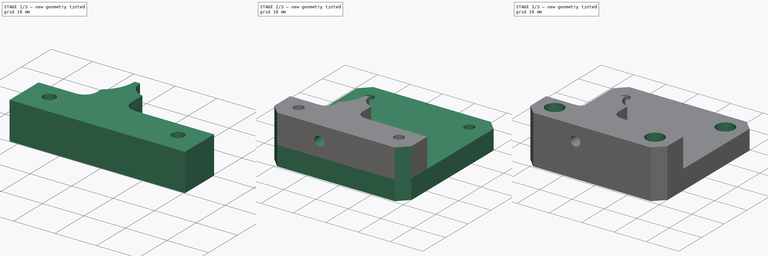
[diagram: build sequence overview — one tinted view per stage of 3, left to right]
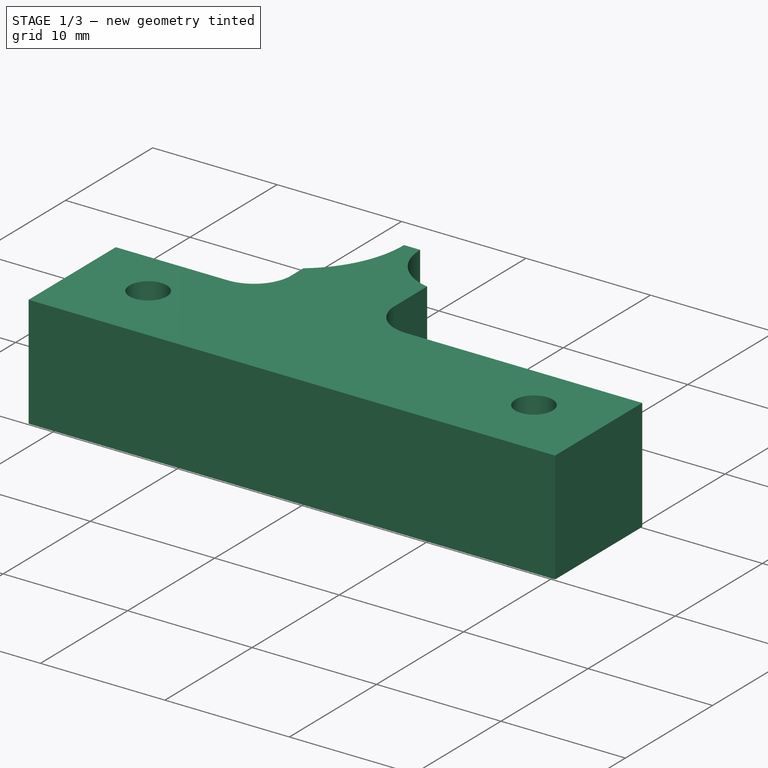
[diagram: stage 1 of 3 — iso view after this stage's code; geometry added in this stage tinted green]
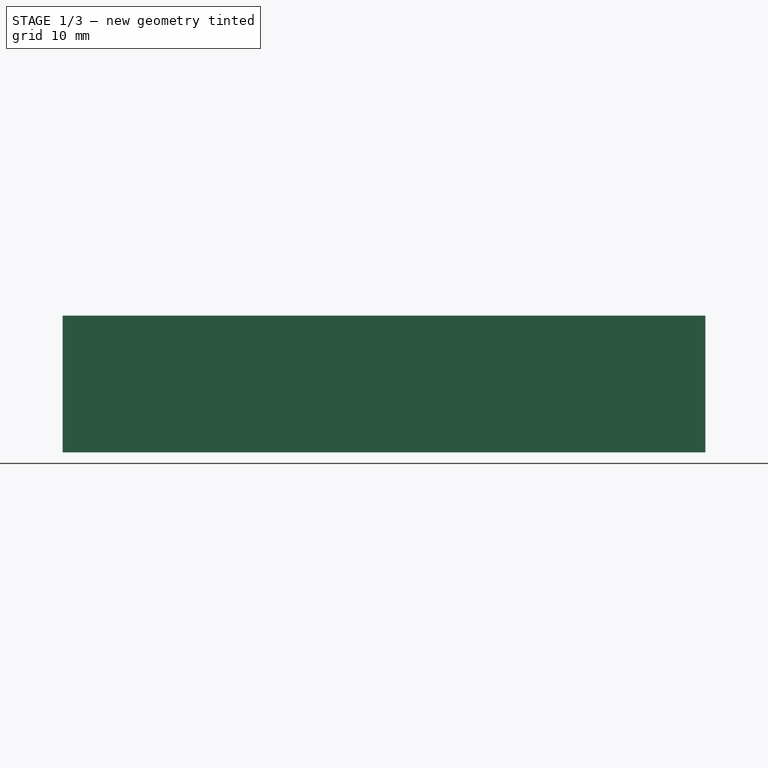
[diagram: stage 1 of 3 — front view after this stage's code; geometry added in this stage tinted green]
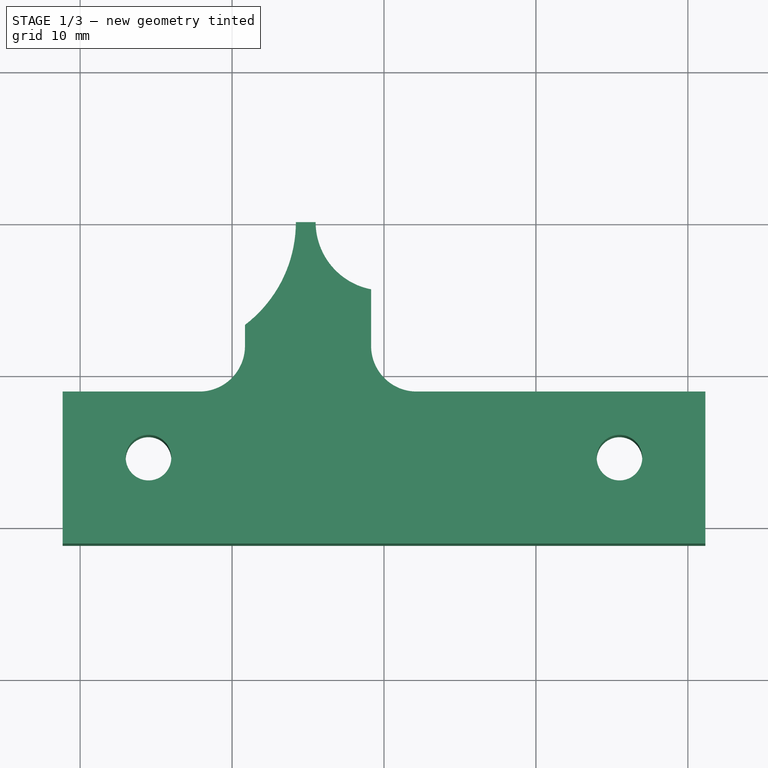
[diagram: stage 1 of 3 — top view after this stage's code; geometry added in this stage tinted green]
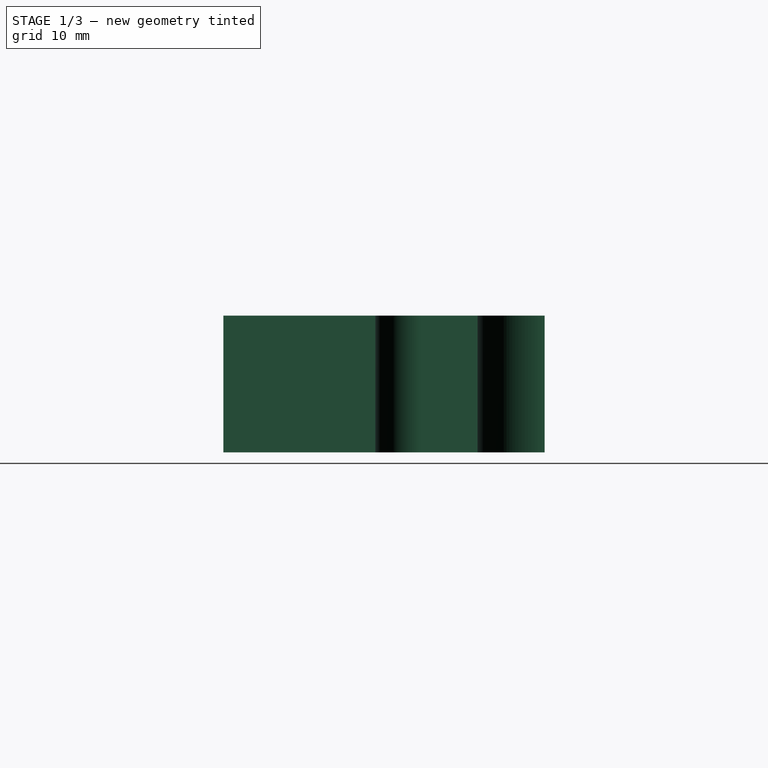
[diagram: stage 1 of 3 — right view after this stage's code; geometry added in this stage tinted green]
FCSTD DOCUMENT  (FreeCAD 0.15R4671 (Git))
Label: bowden
License: All rights reserved
LicenseURL: http://en.wikipedia.org/wiki/All_rights_reserved
objects: Drawing::FeatureView×22, Drawing::FeatureViewPart×7, Sketcher::SketchObject×5, PartDesign::Pocket×3, PartDesign::Pad×2, PartDesign::Fillet×1, PartDesign::Chamfer×1, Drawing::FeaturePage×1
note: 17 computed .brp shape members not serialized (recipe doc carries the construction recipe); baked Part::Feature solids carry a one-line shape summary decoded from their .brp

FEATURE [Sketcher::SketchObject] Sketch
  sketch-geometry (22):
    g0: LineSegment [constr] StartX=-21.15 StartY=21.15 StartZ=0 EndX=21.15 EndY=21.15 EndZ=0
    g1: LineSegment [constr] StartX=21.15 StartY=21.15 StartZ=0 EndX=21.15 EndY=-21.15 EndZ=0
    g2: LineSegment [constr] StartX=21.15 StartY=-21.15 StartZ=0 EndX=-21.15 EndY=-21.15 EndZ=0
    g3: LineSegment [constr] StartX=-21.15 StartY=-21.15 StartZ=0 EndX=-21.15 EndY=21.15 EndZ=0
    g4: Circle [constr] CenterX=15.5 CenterY=15.5 CenterZ=0 NormalX=0 NormalY=0 NormalZ=1 Radius=1.5
    g5: Circle [constr] CenterX=-15.5 CenterY=15.5 CenterZ=0 NormalX=0 NormalY=0 NormalZ=1 Radius=1.5
    g6: Circle CenterX=-15.5 CenterY=-15.5 CenterZ=0 NormalX=0 NormalY=0 NormalZ=1 Radius=1.5
    g7: Circle CenterX=15.5 CenterY=-15.5 CenterZ=0 NormalX=0 NormalY=0 NormalZ=1 Radius=1.5
    g8: Circle [constr] CenterX=0 CenterY=0 CenterZ=0 NormalX=0 NormalY=0 NormalZ=1 Radius=4
    g9: Circle [constr] CenterX=-14.3 CenterY=0 CenterZ=0 NormalX=0 NormalY=0 NormalZ=1 Radius=8
    g10: Circle [constr] CenterX=0 CenterY=0 CenterZ=0 NormalX=0 NormalY=0 NormalZ=1 Radius=3.5
    g11: LineSegment [constr] StartX=-3.5 StartY=0 StartZ=0 EndX=-6.3 EndY=0 EndZ=0
    g12: LineSegment StartX=-21.15 StartY=-11.15 StartZ=0 EndX=-9.15 EndY=-11.15 EndZ=0
    g13: LineSegment StartX=21.15 StartY=-11.15 StartZ=0 EndX=21.15 EndY=-21.15 EndZ=0
    g14: LineSegment StartX=21.15 StartY=-21.15 StartZ=0 EndX=-21.15 EndY=-21.15 EndZ=0
    g15: LineSegment StartX=-21.15 StartY=-21.15 StartZ=0 EndX=-21.15 EndY=-11.15 EndZ=0
    g16: ArcOfCircle CenterX=-14.3 CenterY=0 CenterZ=0 NormalX=0 NormalY=0 NormalZ=1 Radius=8.5 StartAngle=5.36326 EndAngle=6.28319
    g17: LineSegment StartX=-9.15 StartY=-6.76221 StartZ=0 EndX=-9.15 EndY=-11.15 EndZ=0
    g18: ArcOfCircle CenterX=0 CenterY=0 CenterZ=0 NormalX=0 NormalY=0 NormalZ=1 Radius=4.5 StartAngle=3.14159 EndAngle=4.52236
    g19: LineSegment StartX=-5.8 StartY=0 StartZ=0 EndX=-4.5 EndY=0 EndZ=0
    g20: LineSegment StartX=-0.85 StartY=-4.41899 StartZ=0 EndX=-0.85 EndY=-11.15 EndZ=0
    g21: LineSegment StartX=-0.85 StartY=-11.15 StartZ=0 EndX=21.15 EndY=-11.15 EndZ=0
  constraints (60):
    c: Coincident(g0,g1)
    c: Coincident(g1,g2)
    c: Coincident(g2,g3)
    c: Coincident(g3,g0)
    c: Horizontal(g0)
    c: Horizontal(g2)
    c: Vertical(g1)
    c: Vertical(g3)
    c: Symmetric(g0,g1,g-1)
    c: Symmetric(g0,g0,g-2)
    c: Equal(g1,g0)
    c: DistanceY(g1) = -42.3
    c: Equal(g7,g4)
    c: Equal(g4,g5)
    c: Equal(g5,g6)
    c: Radius(g4) = 1.5
    c: Symmetric(g4,g5,g-2)
    c: Symmetric(g5,g6,g-1)
    c: Symmetric(g7,g6,g-2)
    c: DistanceX(g4,g5) = -31
    c: DistanceY(g5,g6) = -31
    c: Coincident(g8,g-1)
    c: Radius(g8) = 4
    c: Radius(g9) = 8
    c: PointOnObject(g9,g-1)
    c: Coincident(g10,g-1)
    c: Radius(g10) = 3.5
    c: PointOnObject(g11,g10)
    c: PointOnObject(g11,g9)
    c: Horizontal(g11)
    c: PointOnObject(g11,g-1)
    c: DistanceX(g11) = -2.8
    c: Coincident(g21,g13)
    c: Coincident(g13,g14)
    c: Coincident(g14,g15)
    c: Coincident(g15,g12)
    c: Horizontal(g12)
    c: Horizontal(g14)
    c: Vertical(g13)
    c: Vertical(g15)
    c: PointOnObject(g12,g3)
    c: Coincident(g13,g1)
    c: DistanceY(g21,g1) = -10
    c: Coincident(g16,g9)
    c: Radius(g16) = 8.5
    c: Coincident(g17,g16)
    c: Vertical(g17)
    c: Coincident(g18,g-1)
    c: Coincident(g19,g16)
    c: Coincident(g19,g18)
    c: Horizontal(g19)
    c: Radius(g18) = 4.5
    c: Coincident(g20,g18)
    c: Vertical(g20)
    c: Coincident(g12,g17)
    c: Coincident(g21,g20)
    c: Tangent(g12,g21)
    c: DistanceX(g12) = 12
    c: DistanceX(g21) = 22
    c: PointOnObject(g16,g11)
FEATURE [PartDesign::Pad] Pad
  Length = 9
  Length2 = 100
  Sketch = -> Sketch
  Type = 0
FEATURE [PartDesign::Fillet] Fillet
  Base = -> Pad [Edge26,Edge11]
  Radius = 3
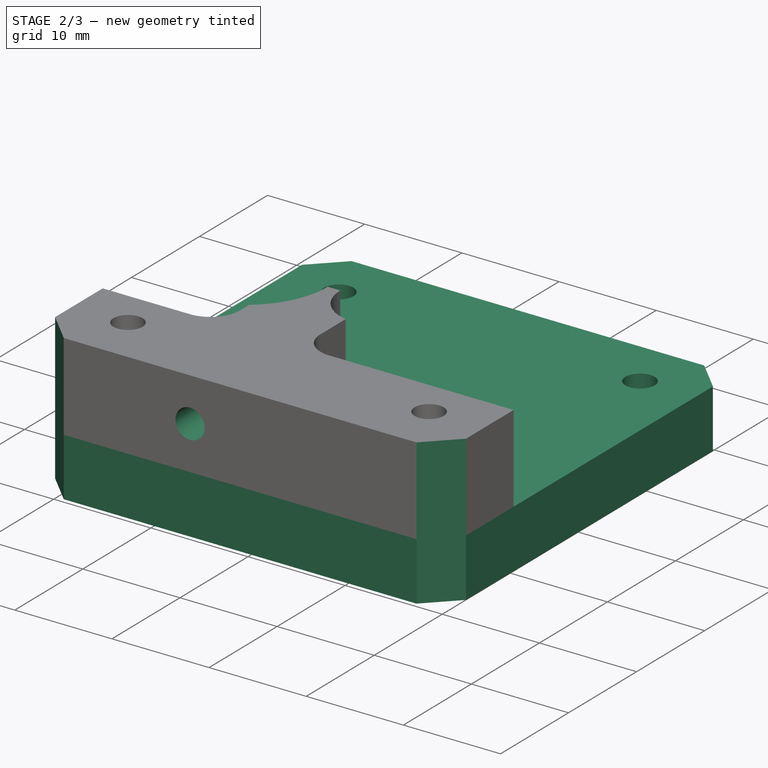
[diagram: stage 2 of 3 — iso view after this stage's code; geometry added in this stage tinted green]
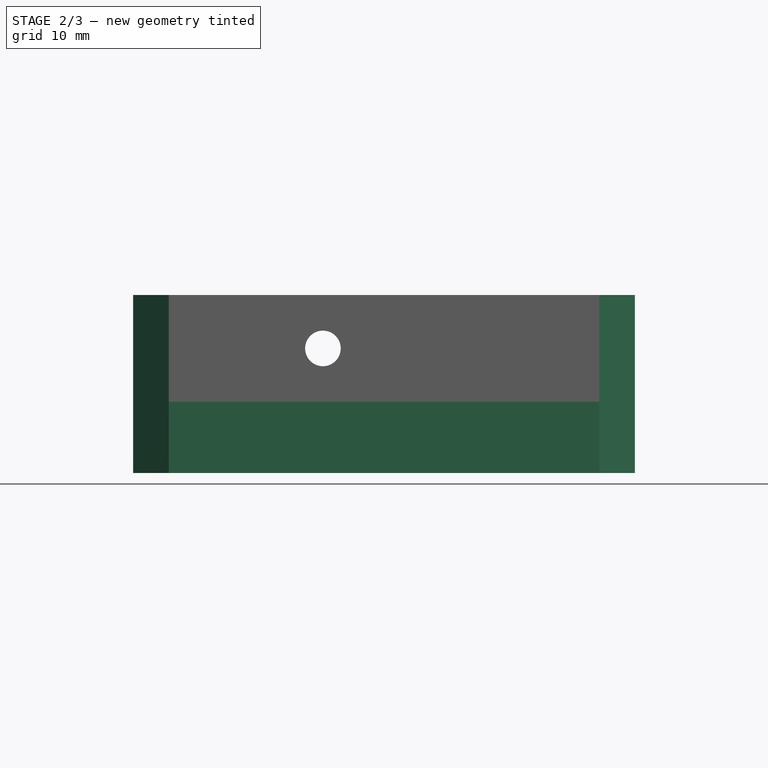
[diagram: stage 2 of 3 — front view after this stage's code; geometry added in this stage tinted green]
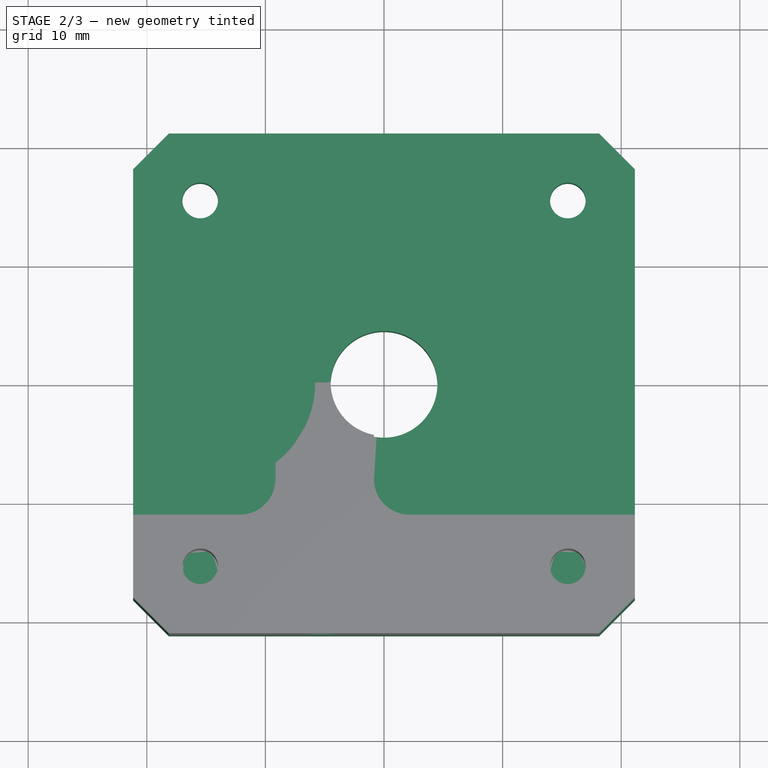
[diagram: stage 2 of 3 — top view after this stage's code; geometry added in this stage tinted green]
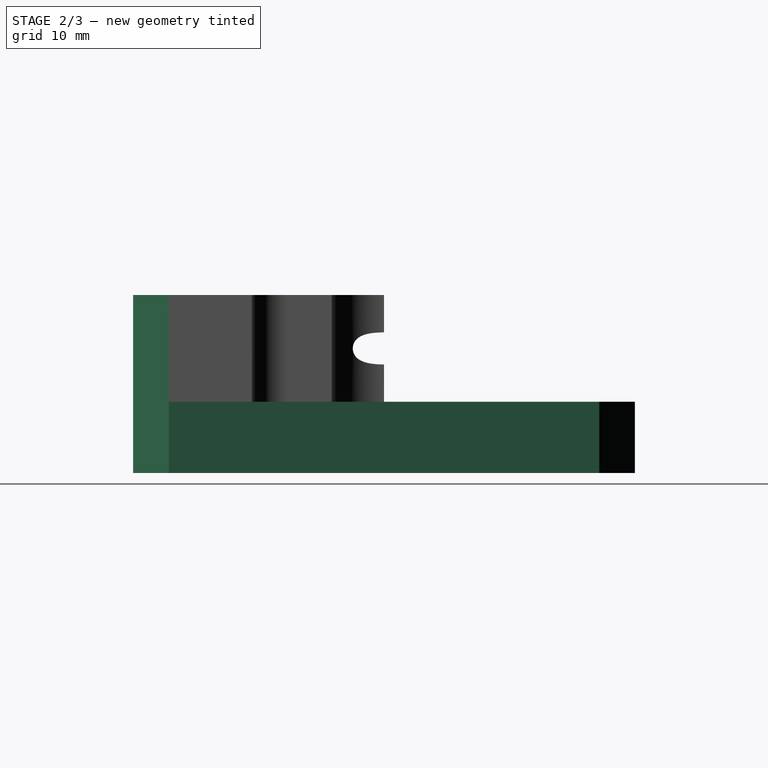
[diagram: stage 2 of 3 — right view after this stage's code; geometry added in this stage tinted green]
FEATURE [Sketcher::SketchObject] Sketch001
  ExternalGeometry = -> [Fillet]
  Placement = pos=(0,0,0) rot=(1,0,0;3.14159rad)
  Support = -> Fillet [Face2]
  sketch-geometry (7):
    g0: LineSegment StartX=-21.15 StartY=21.15 StartZ=0 EndX=21.15 EndY=21.15 EndZ=0
    g1: LineSegment StartX=21.15 StartY=21.15 StartZ=0 EndX=21.15 EndY=-21.15 EndZ=0
    g2: LineSegment StartX=21.15 StartY=-21.15 StartZ=0 EndX=-21.15 EndY=-21.15 EndZ=0
    g3: LineSegment StartX=-21.15 StartY=-21.15 StartZ=0 EndX=-21.15 EndY=21.15 EndZ=0
    g4: Circle CenterX=15.5 CenterY=-15.5 CenterZ=0 NormalX=0 NormalY=0 NormalZ=1 Radius=1.5
    g5: Circle CenterX=-15.5 CenterY=-15.5 CenterZ=0 NormalX=0 NormalY=0 NormalZ=1 Radius=1.5
    g6: Circle CenterX=0 CenterY=0 CenterZ=0 NormalX=0 NormalY=0 NormalZ=1 Radius=4.5
  constraints (17):
    c: Coincident(g0,g1)
    c: Coincident(g1,g2)
    c: Coincident(g2,g3)
    c: Coincident(g3,g0)
    c: Horizontal(g0)
    c: Horizontal(g2)
    c: Vertical(g1)
    c: Vertical(g3)
    c: Coincident(g0,g-3)
    c: Equal(g0,g1)
    c: Coincident(g0,g-3)
    c: Equal(g5,g4)
    c: Equal(g4,g-4)
    c: Symmetric(g-4,g4,g-1)
    c: Symmetric(g4,g5,g-2)
    c: Coincident(g6,g-1)
    c: Radius(g6) = 4.5
FEATURE [PartDesign::Pad] Pad001
  Length = 6
  Length2 = 100
  Sketch = -> Sketch001
  Type = 0
FEATURE [Sketcher::SketchObject] Sketch002
  ExternalGeometry = -> [Pad001]
  Placement = pos=(0,0,0) rot=(0,0.707107,0.707107;3.14159rad)
  Support = -> Pad001 [Face20]
  sketch-geometry (3):
    g0: Circle CenterX=5.15 CenterY=4.5 CenterZ=0 NormalX=0 NormalY=0 NormalZ=1 Radius=1.5
    g1: LineSegment [constr] StartX=5.15 StartY=9 StartZ=0 EndX=5.15 EndY=4.5 EndZ=0
    g2: LineSegment [constr] StartX=5.15 StartY=4.5 StartZ=0 EndX=6.05903 EndY=4.5 EndZ=0
  constraints (7):
    c: Coincident(g1,g0)
    c: Vertical(g1)
    c: Symmetric(g-4,g-3,g1)
    c: Coincident(g2,g0)
    c: Horizontal(g2)
    c: Symmetric(g-4,g-4,g2)
    c: Radius(g0) = 1.5
FEATURE [PartDesign::Pocket] Pocket
  Length = 5
  Sketch = -> Sketch002
  Type = 2
FEATURE [PartDesign::Chamfer] Chamfer
  Base = -> Pocket [Edge14,Edge8,Edge10,Edge13]
  Size = 3
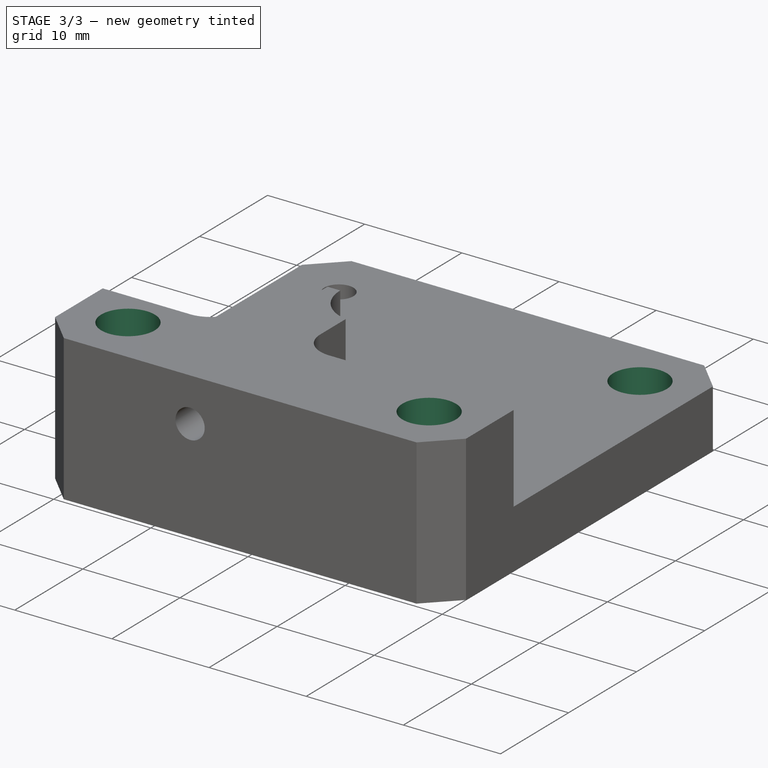
[diagram: stage 3 of 3 — iso view after this stage's code; geometry added in this stage tinted green]
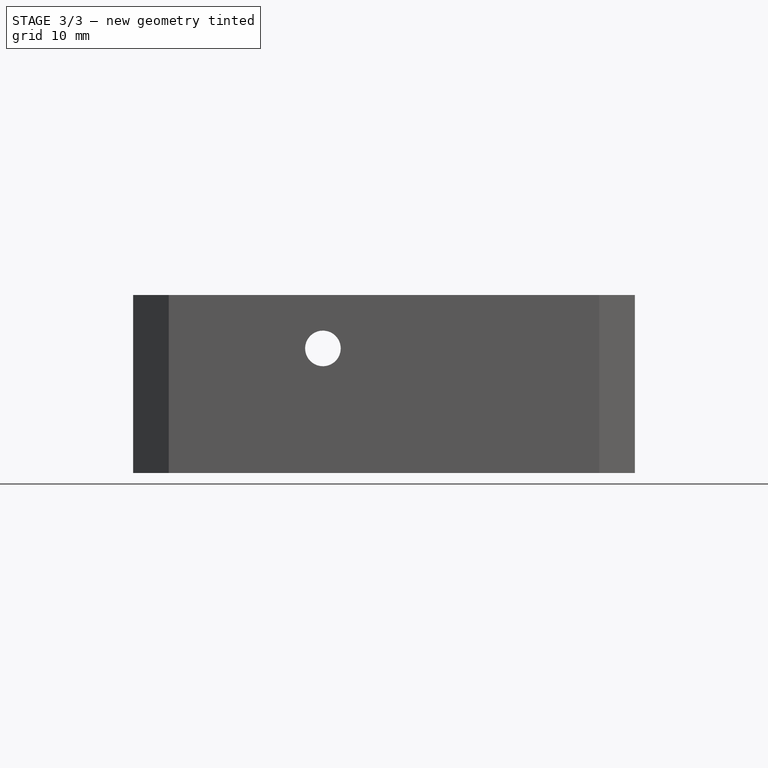
[diagram: stage 3 of 3 — front view after this stage's code; geometry added in this stage tinted green]
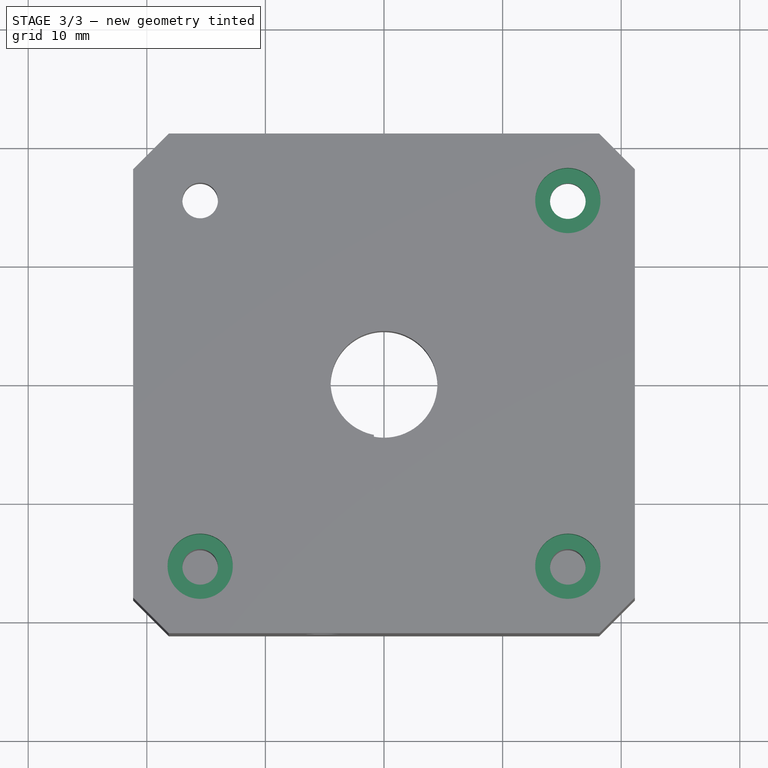
[diagram: stage 3 of 3 — top view after this stage's code; geometry added in this stage tinted green]
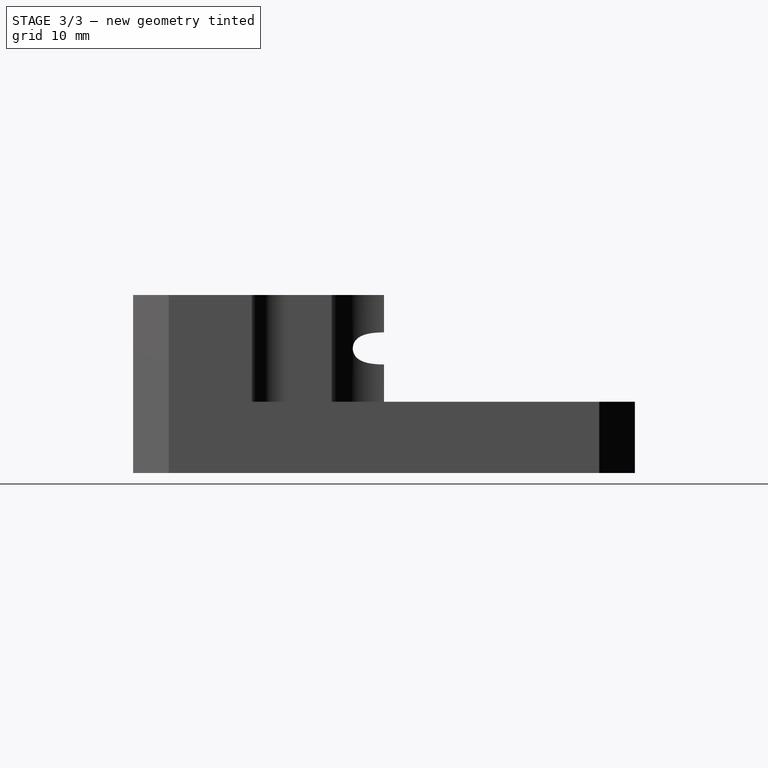
[diagram: stage 3 of 3 — right view after this stage's code; geometry added in this stage tinted green]
FEATURE [Sketcher::SketchObject] Sketch003
  ExternalGeometry = -> [Chamfer]
  Placement = pos=(0,0,9) rot=(0,0,1;0rad)
  Support = -> Chamfer [Face20]
  sketch-geometry (2):
    g0: Circle CenterX=15.5 CenterY=-15.5 CenterZ=0 NormalX=0 NormalY=0 NormalZ=1 Radius=2.75
    g1: Circle CenterX=-15.5 CenterY=-15.5 CenterZ=0 NormalX=0 NormalY=0 NormalZ=1 Radius=2.75
  constraints (4):
    c: Coincident(g0,g-3)
    c: Coincident(g1,g-4)
    c: Equal(g0,g1)
    c: Radius(g0) = 2.75
FEATURE [PartDesign::Pocket] Pocket001
  Length = 2.9
  Sketch = -> Sketch003
  Type = 0
FEATURE [Sketcher::SketchObject] Sketch004
  ExternalGeometry = -> [Pocket001]
  Support = -> Pocket001 [Face16]
  sketch-geometry (1):
    g0: Circle CenterX=15.5 CenterY=15.5 CenterZ=0 NormalX=0 NormalY=0 NormalZ=1 Radius=2.75
  constraints (2):
    c: Coincident(g0,g-3)
    c: Radius(g0) = 2.75
FEATURE [PartDesign::Pocket] Pocket002
  Length = 2.9
  Sketch = -> Sketch004
  Type = 0
FEATURE [Drawing::FeatureViewPart] Ortho  label="Ortho_0_0"
  Direction = (0,0,1)
  HiddenWidth = 0.15
  LineWidth = 0.35
  Rotation = 0
  ShowHiddenLines = false
  ShowSmoothLines = false
  Source = -> Pocket002
  Tolerance = 0.05
  ViewResult = <g id="Ortho_0_0"\n   transform="rotate(0,60,60) translate(60,60) scale(1,1)"\n  >\n<g   stroke="rgb(0, 0, 0)"\n   stroke-width="0.35"\n   stroke-linecap="butt"\n   stroke-linejoin="miter"\n   fill="none"\n   transform="scale(1,-1)"\n  >\n<path id= "1" d=" M -21.15 18.15 L -21.15 -11.15 " />\n<path id= "2" d=" M 21.15 -11.15 L 21.15 18.15 " />\n<path id= "3" d=" M -18.15 21.15 L -21.15 18.15 " />\n<path id= "4" d=" M 21.15 18.15 L 18.15 21.15 " />\n<path id= "5" d=" M 18.15 21.15 L -18.15 21.15 " />\n<path d="M4.5 0 A4.5 4.5 0 0 0 -0.85 -4.41899" /><path d="M-4.5 -5.51091e-16 A4.5 4.5 0 0 0 4.5 1.10218e-15" /><circle cx ="-15.5" cy ="15.5" r ="1.5" /><circle cx ="15.5" cy ="15.5" r ="1.5" /><path id= "10" d=" M 18.15 -21.15 L -18.15 -21.15 " />\n<path id= "11" d=" M -18.15 -21.15 L -21.15 -18.15 " />\n<path id= "12" d=" M 18.15 -21.15 L 21.15 -18.15 " />\n<circle cx ="15.5" cy ="15.5" r ="2.75" /><path id= "14" d=" M -21.15 -18.15 L -21.15 -11.15 " />\n<path id= "15" d=" M 21.15 -11.15 L 21.15 -18.15 " />\n<path d="M-4.5 5.51091e-16 A4.5 4.5 0 0 1 -0.85 -4.41899" /><path d="M-4.5,8.74301e-16 L-4.49948,-0.0681119 " /><path d="M-3.9241,-2.2026 C-4.01535,-2.03957 -4.11606,-1.83846 -4.21207,-1.5838 " /><path d="M-4.3033,-1.31592 Q-4.33182,-1.22305 -4.35877,-1.11856 " /><path id= "20" d=" M 2.15 -11.15 L 21.15 -11.15 " />\n<path d="M-0.85 -8.15 A3 3 0 0 1 2.15 -11.15" /><path id= "22" d=" M -0.85 -4.41899 L -0.85 -8.15 " />\n<path id= "23" d=" M -21.15 -11.15 L -12.15 -11.15 " />\n<path id= "24" d=" M -5.8 0 L -4.5 0 " />\n<path d="M-12.15 -11.15 A3 3 0 0 1 -9.15 -8.15" /><path d="M-9.15 -6.76221 A8.5 8.5 0 0 1 -5.8 -2.0819e-15" /><path id= "27" d=" M -9.15 -6.76221 L -9.15 -8.15 " />\n<circle cx ="-15.5" cy ="-15.5" r ="2.75" /><circle cx ="15.5" cy ="-15.5" r ="2.75" /><circle cx ="-15.5" cy ="-15.5" r ="2.75" /><circle cx ="-15.5" cy ="-15.5" r ="1.5" /><circle cx ="15.5" cy ="-15.5" r ="1.5" /><circle cx ="-15.5" cy ="-15.5" r ="1.5" /><circle cx ="15.5" cy ="-15.5" r ="1.5" /></g>\n</g>
  Visible = true
  X = 60
  Y = 60
FEATURE [Drawing::FeatureViewPart] Ortho001  label="Ortho_0_-1"
  Direction = (0,-1,0)
  HiddenWidth = 0.15
  LineWidth = 0.35
  Rotation = 90
  ShowHiddenLines = false
  ShowSmoothLines = false
  Source = -> Pocket002
  Tolerance = 0.05
  ViewResult = <g id="Ortho_0_-1"\n   transform="rotate(90,60,101.5) translate(60,101.5) scale(1,1)"\n  >\n<g   stroke="rgb(0, 0, 0)"\n   stroke-width="0.35"\n   stroke-linecap="butt"\n   stroke-linejoin="miter"\n   fill="none"\n   transform="scale(1,-1)"\n  >\n<path id= "1" d=" M 6 -18.15 L 6 18.15 " />\n<path id= "2" d=" M 6 -18.15 L 6 -21.15 " />\n<path id= "3" d=" M 6 18.15 L 6 21.15 " />\n<path id= "4" d=" M 0 -18.15 L 0 18.15 " />\n<path id= "5" d=" M 0 -18.15 L 6 -18.15 " />\n<path id= "6" d=" M 0 18.15 L 6 18.15 " />\n<path id= "7" d=" M 0 -21.15 L 6 -21.15 " />\n<path id= "8" d=" M 0 21.15 L 6 21.15 " />\n<path id= "9" d=" M -9 -18.15 L 0 -18.15 " />\n<path id= "10" d=" M -9 18.15 L 0 18.15 " />\n<path id= "11" d=" M -9 18.15 L -9 -18.15 " />\n<circle cx ="-4.5" cy ="-5.15" r ="1.5" /><path id= "13" d=" M -9 -18.15 L -9 -21.15 " />\n<path id= "14" d=" M -9 -21.15 L 0 -21.15 " />\n<path id= "15" d=" M -9 18.15 L -9 21.15 " />\n<path id= "16" d=" M -9 21.15 L 0 21.15 " />\n<path d="M-5.85185,-4.5 C-5.85105,-4.49884 -5.8114,-4.41208 -5.74664,-4.3158  C-5.68071,-4.21746 -5.59104,-4.108 -5.467,-4.00331  C-5.27004,-3.83792 -4.97476,-3.67346 -4.57275,-3.65176  C-4.17992,-3.63229 -3.84977,-3.7714 -3.63634,-3.92358  C-3.46183,-4.04642 -3.33966,-4.18815 -3.25765,-4.30943  C-3.1911,-4.40705 -3.14857,-4.49945 -3.14815,-4.5 " /><path d="M-4.5,-6.65 Q-4.58227,-6.64998 -4.66351,-6.64106 " /><path d="M-3.14815,-5.8 C-3.14823,-5.79892 -3.18001,-5.87204 -3.24622,-5.97343  C-3.3316,-6.10515 -3.47899,-6.27702 -3.68461,-6.40902  C-3.90606,-6.55445 -4.19953,-6.65152 -4.5,-6.65 " /></g>\n</g>
  Visible = true
  X = 60
  Y = 101.5
FEATURE [Drawing::FeatureViewPart] Ortho002  label="Ortho_0_1"
  Direction = (0,1,0)
  HiddenWidth = 0.15
  LineWidth = 0.35
  Rotation = 90
  ShowHiddenLines = false
  ShowSmoothLines = false
  Source = -> Pocket002
  Tolerance = 0.05
  ViewResult = <blob: 2789 chars omitted>
  Visible = true
  X = 60
  Y = 18.5
FEATURE [Drawing::FeatureViewPart] Ortho003  label="Ortho_-1_0"
  Direction = (-1,0,0)
  HiddenWidth = 0.15
  LineWidth = 0.35
  Rotation = 180
  ShowHiddenLines = false
  ShowSmoothLines = false
  Source = -> Pocket002
  Tolerance = 0.05
  ViewResult = <blob: 3274 chars omitted>
  Visible = true
  X = 18.5
  Y = 60
FEATURE [Drawing::FeatureViewPart] Ortho004  label="Ortho_1_0"
  Direction = (1,0,0)
  HiddenWidth = 0.15
  LineWidth = 0.35
  Rotation = 180
  ShowHiddenLines = false
  ShowSmoothLines = false
  Source = -> Pocket002
  Tolerance = 0.05
  ViewResult = <blob: 2092 chars omitted>
  Visible = true
  X = 101.5
  Y = 60
FEATURE [Drawing::FeatureViewPart] Ortho005  label="Ortho_0_002"
  Direction = (0,0,1)
  HiddenWidth = 0.15
  LineWidth = 0.35
  Rotation = 0
  Scale = 2
  ShowHiddenLines = false
  ShowSmoothLines = false
  Source = -> Pocket002
  Tolerance = 0.05
  ViewResult = <blob: 2001 chars omitted>
  Visible = true
  X = 200
  Y = 50
FEATURE [Drawing::FeatureViewPart] Ortho006  label="Ortho_0_-002"
  Direction = (0,-1,0)
  HiddenWidth = 0.15
  LineWidth = 0.35
  Rotation = 90
  Scale = 2
  ShowHiddenLines = false
  ShowSmoothLines = false
  Source = -> Pocket002
  Tolerance = 0.05
  ViewResult = <g id="Ortho_0_-002"\n   transform="rotate(90,200,133) translate(200,133) scale(2,2)"\n  >\n<g   stroke="rgb(0, 0, 0)"\n   stroke-width="0.175"\n   stroke-linecap="butt"\n   stroke-linejoin="miter"\n   fill="none"\n   transform="scale(1,-1)"\n  >\n<path id= "1" d=" M 6 -18.15 L 6 18.15 " />\n<path id= "2" d=" M 6 -18.15 L 6 -21.15 " />\n<path id= "3" d=" M 6 18.15 L 6 21.15 " />\n<path id= "4" d=" M 0 -18.15 L 0 18.15 " />\n<path id= "5" d=" M 0 -18.15 L 6 -18.15 " />\n<path id= "6" d=" M 0 18.15 L 6 18.15 " />\n<path id= "7" d=" M 0 -21.15 L 6 -21.15 " />\n<path id= "8" d=" M 0 21.15 L 6 21.15 " />\n<path id= "9" d=" M -9 -18.15 L 0 -18.15 " />\n<path id= "10" d=" M -9 18.15 L 0 18.15 " />\n<path id= "11" d=" M -9 18.15 L -9 -18.15 " />\n<circle cx ="-4.5" cy ="-5.15" r ="1.5" /><path id= "13" d=" M -9 -18.15 L -9 -21.15 " />\n<path id= "14" d=" M -9 -21.15 L 0 -21.15 " />\n<path id= "15" d=" M -9 18.15 L -9 21.15 " />\n<path id= "16" d=" M -9 21.15 L 0 21.15 " />\n<path d="M-5.85185,-4.5 C-5.85105,-4.49884 -5.8114,-4.41208 -5.74664,-4.3158  C-5.68071,-4.21746 -5.59104,-4.108 -5.467,-4.00331  C-5.27004,-3.83792 -4.97476,-3.67346 -4.57275,-3.65176  C-4.17992,-3.63229 -3.84977,-3.7714 -3.63634,-3.92358  C-3.46183,-4.04642 -3.33966,-4.18815 -3.25765,-4.30943  C-3.1911,-4.40705 -3.14857,-4.49945 -3.14815,-4.5 " /><path d="M-4.5,-6.65 Q-4.58227,-6.64998 -4.66351,-6.64106 " /><path d="M-3.14815,-5.8 C-3.14823,-5.79892 -3.18001,-5.87204 -3.24622,-5.97343  C-3.3316,-6.10515 -3.47899,-6.27702 -3.68461,-6.40902  C-3.90606,-6.55445 -4.19953,-6.65152 -4.5,-6.65 " /></g>\n</g>
  Visible = true
  X = 200
  Y = 133
FEATURE [Drawing::FeatureView] centerLines
  Rotation = 0
  ViewResult = <g transform="scale(1.000000,1.000000)" stroke="rgb(0,0,255)"  stroke-width="0.300000" > <path d="M 60.000000,60.000000 L 60.000000,62.000000 M 60.000000,64.000000 L 60.000000,65.000000 "/>\n<path d="M 60.000000,60.000000 L 58.000000,60.000000 M 56.000000,60.000000 L 55.000000,60.000000 "/>\n<path d="M 60.000000,60.000000 L 60.000000,58.000000 M 60.000000,56.000000 L 60.000000,55.000000 "/>\n<path d="M 60.000000,60.000000 L 62.000000,60.000000 M 64.000000,60.000000 L 65.000000,60.000000 "/> </g> 
  Visible = true
  X = 0
  Y = 0
FEATURE [Drawing::FeatureView] centerLines001
  Rotation = 0
  ViewResult = <g transform="scale(1.000000,1.000000)" stroke="rgb(0,0,255)"  stroke-width="0.300000" > <path d="M 44.500000,75.500000 L 44.500000,73.500000 M 44.500000,71.500000 L 44.500000,70.000000 "/>\n<path d="M 44.500000,75.500000 L 42.500000,75.500000 M 40.500000,75.500000 L 40.000000,75.500000 "/>\n<path d="M 44.500000,75.500000 L 44.500000,77.500000 M 44.500000,79.500000 L 44.500000,80.000000 "/>\n<path d="M 44.500000,75.500000 L 46.500000,75.500000 M 48.500000,75.500000 L 50.000000,75.500000 "/> </g> 
  Visible = true
  X = 0
  Y = 0
FEATURE [Drawing::FeatureView] centerLines002
  Rotation = 0
  ViewResult = <g transform="scale(1.000000,1.000000)" stroke="rgb(0,0,255)"  stroke-width="0.300000" > <path d="M 75.500000,75.500000 L 75.500000,73.500000 M 75.500000,71.500000 L 75.500000,70.000000 "/>\n<path d="M 75.500000,75.500000 L 73.500000,75.500000 M 71.500000,75.500000 L 70.000000,75.500000 "/>\n<path d="M 75.500000,75.500000 L 75.500000,77.500000 M 75.500000,79.500000 L 75.500000,80.000000 "/>\n<path d="M 75.500000,75.500000 L 77.500000,75.500000 M 79.500000,75.500000 L 80.000000,75.500000 "/> </g> 
  Visible = true
  X = 0
  Y = 0
FEATURE [Drawing::FeatureView] centerLines003
  Rotation = 0
  ViewResult = <g transform="scale(1.000000,1.000000)" stroke="rgb(0,0,255)"  stroke-width="0.300000" > <path d="M 75.500000,44.500000 L 75.500000,46.500000 M 75.500000,48.500000 L 75.500000,50.000000 "/>\n<path d="M 75.500000,44.500000 L 73.500000,44.500000 M 71.500000,44.500000 L 70.000000,44.500000 "/>\n<path d="M 75.500000,44.500000 L 75.500000,42.500000 M 75.500000,40.500000 L 75.500000,40.000000 "/>\n<path d="M 75.500000,44.500000 L 77.500000,44.500000 M 79.500000,44.500000 L 80.000000,44.500000 "/> </g> 
  Visible = true
  X = 0
  Y = 0
FEATURE [Drawing::FeatureView] centerLines004
  Rotation = 0
  ViewResult = <g transform="scale(1.000000,1.000000)" stroke="rgb(0,0,255)"  stroke-width="0.300000" > <path d="M 44.500000,44.500000 L 44.500000,42.500000 M 44.500000,40.500000 L 44.500000,40.000000 "/>\n<path d="M 44.500000,44.500000 L 46.500000,44.500000 M 48.500000,44.500000 L 50.000000,44.500000 "/>\n<path d="M 44.500000,44.500000 L 44.500000,46.500000 M 44.500000,48.500000 L 44.500000,50.000000 "/>\n<path d="M 44.500000,44.500000 L 42.500000,44.500000 M 40.500000,44.500000 L 40.000000,44.500000 "/> </g> 
  Visible = true
  X = 0
  Y = 0
FEATURE [Drawing::FeatureView] centerLines005
  Rotation = 0
  ViewResult = <g transform="scale(1.000000,1.000000)" stroke="rgb(0,0,255)"  stroke-width="0.300000" > <path d="M 45.700000,59.999999 L 45.700000,61.999999 M 45.700000,63.999999 L 45.700000,65.000000 "/>\n<path d="M 45.700000,59.999999 L 43.700000,59.999999 M 41.700000,59.999999 L 40.000000,59.999999 "/>\n<path d="M 45.700000,59.999999 L 45.700000,57.999999 M 45.700000,55.999999 L 45.700000,55.000000 "/>\n<path d="M 45.700000,59.999999 L 47.700000,59.999999 M 49.700000,59.999999 L 50.000000,59.999999 "/> </g> 
  Visible = true
  X = 0
  Y = 0
FEATURE [Drawing::FeatureView] centerLines006
  Rotation = 0
  ViewResult = <g transform="scale(1.000000,1.000000)" stroke="rgb(0,0,255)"  stroke-width="0.300000" > <path d="M 54.850000,97.000000 L 54.850000,95.000000 M 54.850000,93.000000 L 54.850000,90.000000 "/>\n<path d="M 54.850000,97.000000 L 56.850000,97.000000 M 58.850000,97.000000 L 60.000000,97.000000 "/>\n<path d="M 54.850000,97.000000 L 54.850000,99.000000 M 54.850000,101.000000 L 54.850000,105.000000 "/>\n<path d="M 54.850000,97.000000 L 52.850000,97.000000 M 50.850000,97.000000 L 50.000000,97.000000 "/> </g> 
  Visible = true
  X = 0
  Y = 0
FEATURE [Drawing::FeatureView] dim
  Rotation = 0
  ViewResult = <g>  <circle cx ="200.000000" cy ="49.999994" r="0.500000" stroke="none" fill="rgb(0,0,255)" /> \n<line x1="210.000000" y1="60.000000" x2="193.636041" y2="43.636031" style="stroke:rgb(0,0,255);stroke-width:0.50" />\n<polygon points="206.363959,56.363957 204.949746,53.535529 203.535533,53.535529 203.535532,54.949742" style="fill:rgb(0,0,255);stroke:rgb(0,0,255);stroke-width:0" />\n<polygon points="193.636041,43.636031 195.050254,46.464458 196.464467,46.464459 196.464468,45.050245" style="fill:rgb(0,0,255);stroke:rgb(0,0,255);stroke-width:0" />\n<line x1="210.000000" y1="60.000000" x2="235.000000" y2="60.000000" style="stroke:rgb(0,0,255);stroke-width:0.50" />\n<text x="222.500000" y="58.000000" font-family="inherit" font-size="10" fill="rgb(0,0,255)" text-anchor="middle" transform="rotate(0.000000 222.500000,58.000000)" >Ø9</text> </g>
  Visible = true
  X = 0
  Y = 0
FEATURE [Drawing::FeatureView] dim002
  Rotation = 0
  ViewResult = <g>  <circle cx ="169.000000" cy ="19.000000" r="0.500000" stroke="none" fill="rgb(0,0,255)" /> \n<line x1="175.000000" y1="25.000000" x2="166.878680" y2="16.878680" style="stroke:rgb(0,0,255);stroke-width:0.50" />\n<polygon points="171.121320,21.121320 172.535534,23.949747 173.949747,23.949747 173.949747,22.535534" style="fill:rgb(0,0,255);stroke:rgb(0,0,255);stroke-width:0" />\n<polygon points="166.878680,16.878680 165.464466,14.050253 164.050253,14.050253 164.050253,15.464466" style="fill:rgb(0,0,255);stroke:rgb(0,0,255);stroke-width:0" />\n<line x1="175.000000" y1="25.000000" x2="195.000000" y2="25.000000" style="stroke:rgb(0,0,255);stroke-width:0.50" />\n<text x="185.000000" y="23.000000" font-family="inherit" font-size="10" fill="rgb(0,0,255)" text-anchor="middle" transform="rotate(0.000000 185.000000,23.000000)" >Ø3</text> </g>
  Visible = true
  X = 0
  Y = 0
FEATURE [Drawing::FeatureView] dim003
  Rotation = 0
  ViewResult = <g>  <circle cx ="231.000000" cy ="19.000000" r="0.500000" stroke="none" fill="rgb(0,0,255)" /> \n<line x1="240.000000" y1="25.000000" x2="228.503849" y2="17.335899" style="stroke:rgb(0,0,255);stroke-width:0.50" />\n<polygon points="233.496151,20.664101 235.437602,23.160251 236.824352,22.882901 236.547002,21.496151" style="fill:rgb(0,0,255);stroke:rgb(0,0,255);stroke-width:0" />\n<polygon points="228.503849,17.335899 226.562398,14.839749 225.175648,15.117099 225.452998,16.503849" style="fill:rgb(0,0,255);stroke:rgb(0,0,255);stroke-width:0" />\n<line x1="240.000000" y1="25.000000" x2="255.000000" y2="25.000000" style="stroke:rgb(0,0,255);stroke-width:0.50" />\n<text x="247.500000" y="23.000000" font-family="inherit" font-size="10" fill="rgb(0,0,255)" text-anchor="middle" transform="rotate(0.000000 247.500000,23.000000)" >Ø3</text> </g>
  Visible = true
  X = 0
  Y = 0
FEATURE [Drawing::FeatureView] dim004
  Rotation = 0
  ViewResult = <g>  <circle cx ="231.000000" cy ="19.000000" r="0.500000" stroke="none" fill="rgb(0,0,255)" /> \n<line x1="225.000000" y1="30.000000" x2="233.633687" y2="14.171574" style="stroke:rgb(0,0,255);stroke-width:0.50" />\n<polygon points="228.366313,23.828426 230.680765,21.673591 230.281722,20.316843 228.924974,20.715887" style="fill:rgb(0,0,255);stroke:rgb(0,0,255);stroke-width:0" />\n<polygon points="233.633687,14.171574 231.319235,16.326409 231.718278,17.683157 233.075026,17.284113" style="fill:rgb(0,0,255);stroke:rgb(0,0,255);stroke-width:0" />\n<line x1="225.000000" y1="30.000000" x2="205.000000" y2="30.000000" style="stroke:rgb(0,0,255);stroke-width:0.50" />\n<text x="215.000000" y="28.000000" font-family="inherit" font-size="10" fill="rgb(0,0,255)" text-anchor="middle" transform="rotate(0.000000 215.000000,28.000000)" >Ø5.5</text> </g>
  Visible = true
  X = 0
  Y = 0
FEATURE [Drawing::FeatureView] dim005
  Rotation = 0
  ViewResult = <g>  <circle cx ="189.700000" cy ="124.000000" r="0.500000" stroke="none" fill="rgb(0,0,255)" /> \n<line x1="195.000000" y1="130.000000" x2="187.713896" y2="121.751580" style="stroke:rgb(0,0,255);stroke-width:0.50" />\n<polygon points="191.686104,126.248420 192.922735,129.158874 194.334243,129.246312 194.421681,127.834805" style="fill:rgb(0,0,255);stroke:rgb(0,0,255);stroke-width:0" />\n<polygon points="187.713896,121.751580 186.477265,118.841126 185.065757,118.753688 184.978319,120.165195" style="fill:rgb(0,0,255);stroke:rgb(0,0,255);stroke-width:0" />\n<line x1="195.000000" y1="130.000000" x2="215.000000" y2="130.000000" style="stroke:rgb(0,0,255);stroke-width:0.50" />\n<text x="205.000000" y="128.000000" font-family="inherit" font-size="10" fill="rgb(0,0,255)" text-anchor="middle" transform="rotate(0.000000 205.000000,128.000000)" >Ø3</text> </g>
  Visible = true
  X = 0
  Y = 0
FEATURE [Drawing::FeatureView] dim006
  Rotation = 0
  ViewResult = <g>  <circle cx ="171.400000" cy ="49.999998" r="0.500000" stroke="none" fill="rgb(0,0,255)" /> \n<line x1="180.000000" y1="60.000000" x2="171.400000" y2="49.999998" style="stroke:rgb(0,0,255);stroke-width:0.50" />\n<polygon points="182.484666,62.889147 181.286734,59.962552 179.876509,59.856406 179.770363,61.266631" style="fill:rgb(0,0,255);stroke:rgb(0,0,255);stroke-width:0" />\n<line x1="180.000000" y1="60.000000" x2="140.000000" y2="60.000000" style="stroke:rgb(0,0,255);stroke-width:0.50" />\n<text x="160.000000" y="58.000000" font-family="inherit" font-size="10" fill="rgb(0,0,255)" text-anchor="middle" transform="rotate(0.000000 160.000000,58.000000)" >R8.5</text> </g>
  Visible = true
  X = 0
  Y = 0
FEATURE [Drawing::FeatureView] dim007
  Rotation = 0
  ViewResult = <g> \n  <line x1="161.700000" y1="7.700000" x2="129.000000" y2="7.700000" style="stroke:rgb(0,0,255);stroke-width:0.50" />\n<line x1="161.700000" y1="92.300000" x2="129.000000" y2="92.300000" style="stroke:rgb(0,0,255);stroke-width:0.50" />\n<line x1="130.000000" y1="7.700000" x2="130.000000" y2="92.300000" style="stroke:rgb(0,0,255);stroke-width:0.50" /> \n  <polygon points="130.000000,92.300000 131.000000,89.300000 130.000000,88.300000 129.000000,89.300000" style="fill:rgb(0,0,255);stroke:rgb(0,0,255);stroke-width:0" /><polygon points="130.000000,7.700000 129.000000,10.700000 130.000000,11.700000 131.000000,10.700000" style="fill:rgb(0,0,255);stroke:rgb(0,0,255);stroke-width:0" /> \n  <text x="128.000000" y="50.000000" font-family="inherit" font-size="10" fill="rgb(0,0,255)" text-anchor="middle" transform="rotate(-90.000000 128.000000,50.000000)" >42.3</text> </g>
  Visible = true
  X = 0
  Y = 0
FEATURE [Drawing::FeatureView] dim008
  Rotation = 0
  ViewResult = <g> \n  <line x1="233.000000" y1="81.000000" x2="276.000000" y2="81.000000" style="stroke:rgb(0,0,255);stroke-width:0.50" />\n<line x1="233.000000" y1="19.000000" x2="276.000000" y2="19.000000" style="stroke:rgb(0,0,255);stroke-width:0.50" />\n<line x1="275.000000" y1="81.000000" x2="275.000000" y2="19.000000" style="stroke:rgb(0,0,255);stroke-width:0.50" /> \n  <polygon points="275.000000,19.000000 274.000000,22.000000 275.000000,23.000000 276.000000,22.000000" style="fill:rgb(0,0,255);stroke:rgb(0,0,255);stroke-width:0" /><polygon points="275.000000,81.000000 276.000000,78.000000 275.000000,77.000000 274.000000,78.000000" style="fill:rgb(0,0,255);stroke:rgb(0,0,255);stroke-width:0" /> \n  <text x="273.000000" y="50.000000" font-family="inherit" font-size="10" fill="rgb(0,0,255)" text-anchor="middle" transform="rotate(-90.000000 273.000000,50.000000)" >31</text> </g>
  Visible = true
  X = 0
  Y = 0
FEATURE [Drawing::FeatureView] dim009
  Rotation = 0
  ViewResult = <g> \n  <line x1="244.300000" y1="115.000000" x2="266.000000" y2="115.000000" style="stroke:rgb(0,0,255);stroke-width:0.50" />\n<line x1="244.300000" y1="145.000000" x2="266.000000" y2="145.000000" style="stroke:rgb(0,0,255);stroke-width:0.50" />\n<line x1="265.000000" y1="115.000000" x2="265.000000" y2="145.000000" style="stroke:rgb(0,0,255);stroke-width:0.50" /> \n  <polygon points="265.000000,145.000000 266.000000,142.000000 265.000000,141.000000 264.000000,142.000000" style="fill:rgb(0,0,255);stroke:rgb(0,0,255);stroke-width:0" /><polygon points="265.000000,115.000000 264.000000,118.000000 265.000000,119.000000 266.000000,118.000000" style="fill:rgb(0,0,255);stroke:rgb(0,0,255);stroke-width:0" /> \n  <text x="263.000000" y="130.000000" font-family="inherit" font-size="10" fill="rgb(0,0,255)" text-anchor="middle" transform="rotate(-90.000000 263.000000,130.000000)" >15</text> </g>
  Visible = true
  X = 0
  Y = 0
FEATURE [Drawing::FeatureView] dim010
  Rotation = 0
  ViewResult = <g> \n  <line x1="161.700000" y1="133.000000" x2="139.000000" y2="133.000000" style="stroke:rgb(0,0,255);stroke-width:0.50" />\n<line x1="161.700000" y1="145.000000" x2="139.000000" y2="145.000000" style="stroke:rgb(0,0,255);stroke-width:0.50" />\n<line x1="140.000000" y1="133.000000" x2="140.000000" y2="145.000000" style="stroke:rgb(0,0,255);stroke-width:0.50" /> \n  <polygon points="140.000000,145.000000 141.000000,142.000000 140.000000,141.000000 139.000000,142.000000" style="fill:rgb(0,0,255);stroke:rgb(0,0,255);stroke-width:0" /><polygon points="140.000000,133.000000 139.000000,136.000000 140.000000,137.000000 141.000000,136.000000" style="fill:rgb(0,0,255);stroke:rgb(0,0,255);stroke-width:0" /> \n  <text x="138.000000" y="139.000000" font-family="inherit" font-size="10" fill="rgb(0,0,255)" text-anchor="middle" transform="rotate(-90.000000 138.000000,139.000000)" >6</text> </g>
  Visible = true
  X = 0
  Y = 0
FEATURE [Drawing::FeatureView] dim011
  Rotation = 0
  ViewResult = <g> \n  <line x1="189.700000" y1="122.000000" x2="189.700000" y2="104.000000" style="stroke:rgb(0,0,255);stroke-width:0.50" />\n<line x1="163.700000" y1="113.000000" x2="163.700000" y2="104.000000" style="stroke:rgb(0,0,255);stroke-width:0.50" />\n<line x1="189.700000" y1="105.000000" x2="163.700000" y2="105.000000" style="stroke:rgb(0,0,255);stroke-width:0.50" /> \n  <polygon points="163.700000,105.000000 166.700000,106.000000 167.700000,105.000000 166.700000,104.000000" style="fill:rgb(0,0,255);stroke:rgb(0,0,255);stroke-width:0" /><polygon points="189.700000,105.000000 186.700000,104.000000 185.700000,105.000000 186.700000,106.000000" style="fill:rgb(0,0,255);stroke:rgb(0,0,255);stroke-width:0" /> \n  <text x="176.700000" y="103.000000" font-family="inherit" font-size="10" fill="rgb(0,0,255)" text-anchor="middle" transform="rotate(0.000000 176.700000,103.000000)" >13</text> </g>
  Visible = true
  X = 0
  Y = 0
FEATURE [Drawing::FeatureView] dim012
  Rotation = 0
  ViewResult = <g> \n  <line x1="187.700000" y1="124.000000" x2="149.000000" y2="124.000000" style="stroke:rgb(0,0,255);stroke-width:0.50" />\n<line x1="161.700000" y1="115.000000" x2="149.000000" y2="115.000000" style="stroke:rgb(0,0,255);stroke-width:0.50" />\n<line x1="150.000000" y1="124.000000" x2="150.000000" y2="115.000000" style="stroke:rgb(0,0,255);stroke-width:0.50" /> \n  <polygon points="150.000000,115.000000 151.000000,112.000000 150.000000,111.000000 149.000000,112.000000" style="fill:rgb(0,0,255);stroke:rgb(0,0,255);stroke-width:0" /><polygon points="150.000000,124.000000 149.000000,127.000000 150.000000,128.000000 151.000000,127.000000" style="fill:rgb(0,0,255);stroke:rgb(0,0,255);stroke-width:0" /> \n  <text x="148.000000" y="119.500000" font-family="inherit" font-size="10" fill="rgb(0,0,255)" text-anchor="middle" transform="rotate(-90.000000 148.000000,119.500000)" >4.5</text> </g>
  Visible = true
  X = 0
  Y = 0
FEATURE [Drawing::FeatureView] dim013
  Rotation = 0
  ViewResult = <g>  <circle cx ="175.700000" cy ="66.300000" r="0.500000" stroke="none" fill="rgb(0,0,255)" /> \n<line x1="185.000000" y1="75.000000" x2="175.700000" y2="66.300000" style="stroke:rgb(0,0,255);stroke-width:0.50" />\n<polygon points="180.081628,70.398943 178.573971,67.619200 177.160543,67.666314 177.207657,69.079743" style="fill:rgb(0,0,255);stroke:rgb(0,0,255);stroke-width:0" />\n<line x1="185.000000" y1="75.000000" x2="190.000000" y2="75.000000" style="stroke:rgb(0,0,255);stroke-width:0.50" />\n<text x="187.500000" y="73.000000" font-family="inherit" font-size="10" fill="rgb(0,0,255)" text-anchor="middle" transform="rotate(0.000000 187.500000,73.000000)" >R3</text> </g>
  Visible = true
  X = 0
  Y = 0
FEATURE [Drawing::FeatureView] dim014
  Rotation = 0
  ViewResult = <g>  <circle cx ="204.300000" cy ="66.300000" r="0.500000" stroke="none" fill="rgb(0,0,255)" /> \n<line x1="200.000000" y1="90.000000" x2="204.300000" y2="66.300000" style="stroke:rgb(0,0,255);stroke-width:0.50" />\n<polygon points="203.228880,72.203618 204.748376,69.430329 203.942960,68.267873 202.780503,69.073289" style="fill:rgb(0,0,255);stroke:rgb(0,0,255);stroke-width:0" />\n<line x1="200.000000" y1="90.000000" x2="185.000000" y2="90.000000" style="stroke:rgb(0,0,255);stroke-width:0.50" />\n<text x="192.500000" y="88.000000" font-family="inherit" font-size="10" fill="rgb(0,0,255)" text-anchor="middle" transform="rotate(0.000000 192.500000,88.000000)" >R3</text> </g>
  Visible = true
  X = 0
  Y = 0
FEATURE [Drawing::FeatureView] dim015
  Rotation = 0
  ViewResult = <g> \n  <line x1="38.850000" y1="94.500000" x2="38.850000" y2="126.000000" style="stroke:rgb(0,0,255);stroke-width:0.50" />\n<line x1="54.850000" y1="92.000000" x2="54.850000" y2="126.000000" style="stroke:rgb(0,0,255);stroke-width:0.50" />\n<line x1="38.850000" y1="125.000000" x2="54.850000" y2="125.000000" style="stroke:rgb(0,0,255);stroke-width:0.50" /> \n  <polygon points="54.850000,125.000000 51.850000,124.000000 50.850000,125.000000 51.850000,126.000000" style="fill:rgb(0,0,255);stroke:rgb(0,0,255);stroke-width:0" /><polygon points="38.850000,125.000000 41.850000,126.000000 42.850000,125.000000 41.850000,124.000000" style="fill:rgb(0,0,255);stroke:rgb(0,0,255);stroke-width:0" /> \n  <text x="46.850000" y="123.000000" font-family="inherit" font-size="10" fill="rgb(0,0,255)" text-anchor="middle" transform="rotate(0.000000 46.850000,123.000000)" >16</text> </g>
  Visible = true
  X = 0
  Y = 0
FEATURE [Drawing::FeaturePage] Page
  Group = -> [Ortho,Ortho001,Ortho002,Ortho003,Ortho004,Ortho005,Ortho006,centerLines,centerLines001,centerLines002,centerLines003,centerLines004,centerLines005,centerLines006,dim,dim002,dim003,dim004,dim005,dim006,dim007,dim008,dim009,dim010,dim011,dim012,dim013,dim014,dim015]
  Template = <path>
note: 1 file-system path scrubbed to <path> (originals preserved in the JSON sidecar)
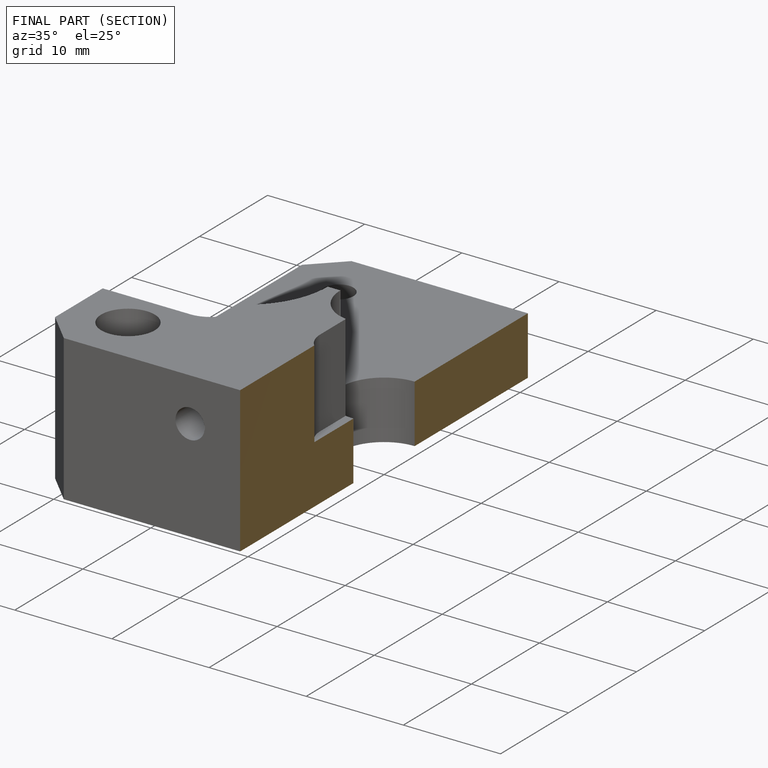
[diagram: finished part — half-section view (interior)]
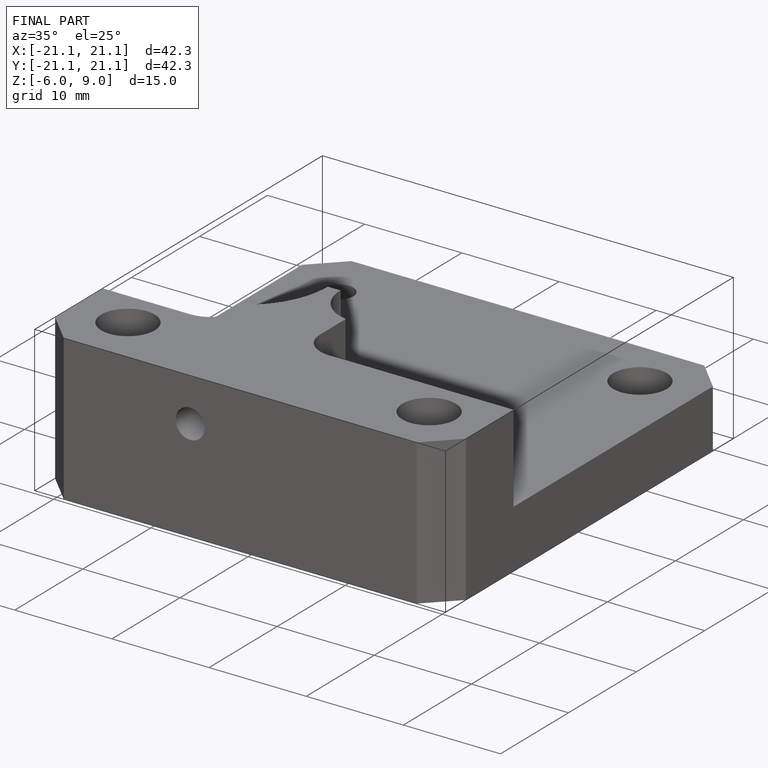
[diagram: finished part — iso view with bounding-box wireframe]
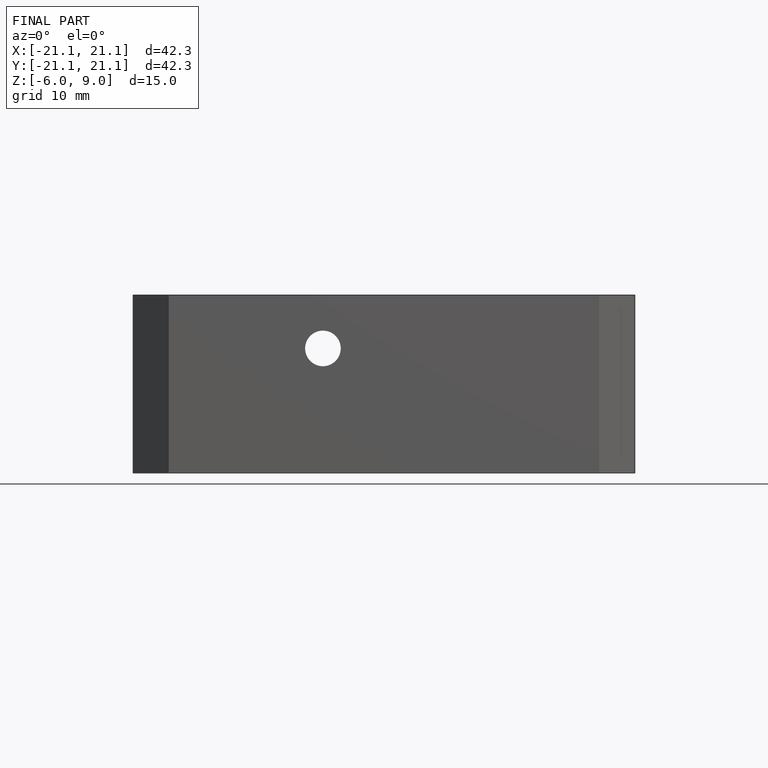
[diagram: finished part — front view with bounding-box wireframe]
